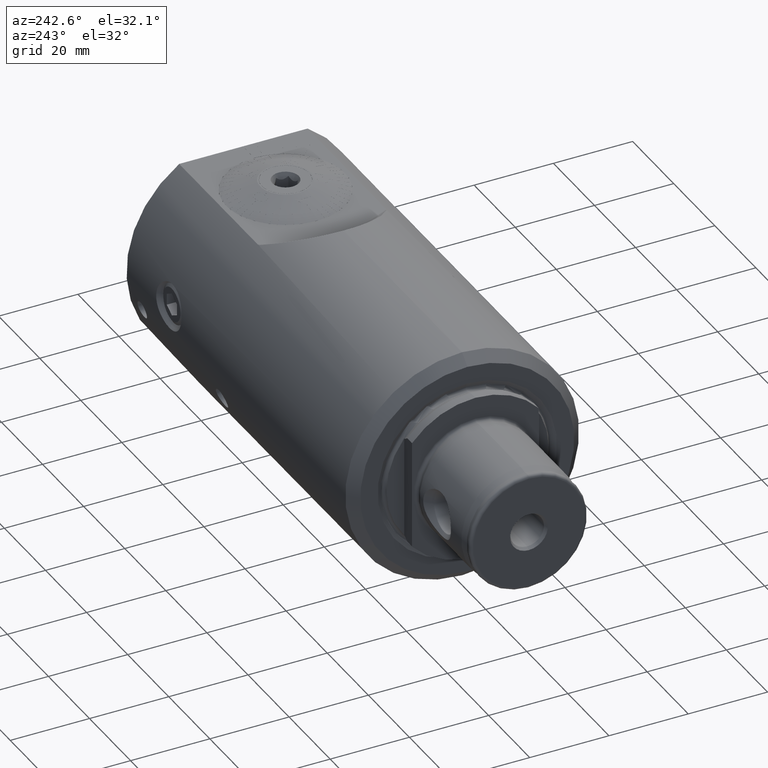
[diagram: clean part render]
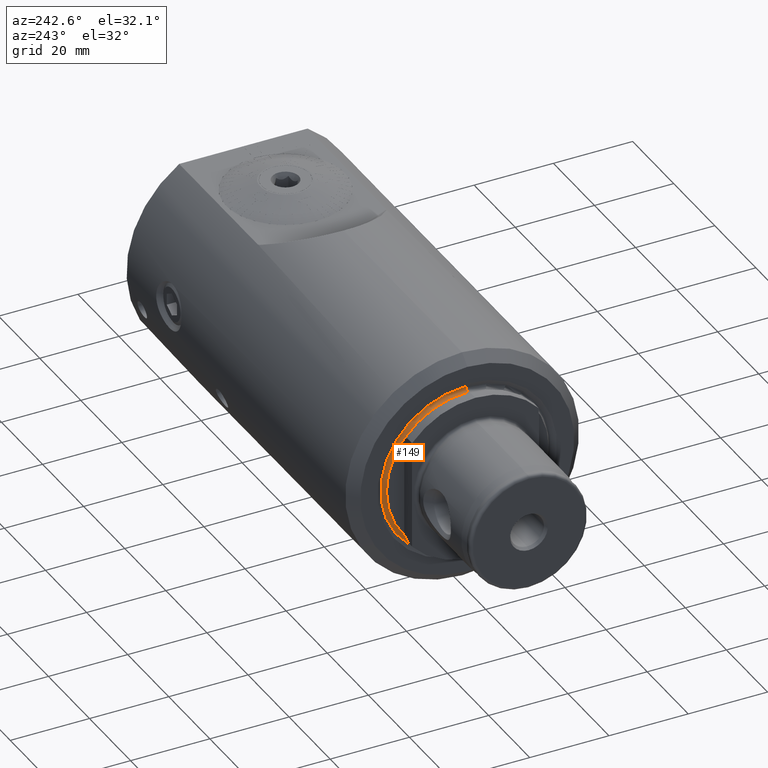
[diagram: same view with one face highlighted and labeled with its STEP entity id]
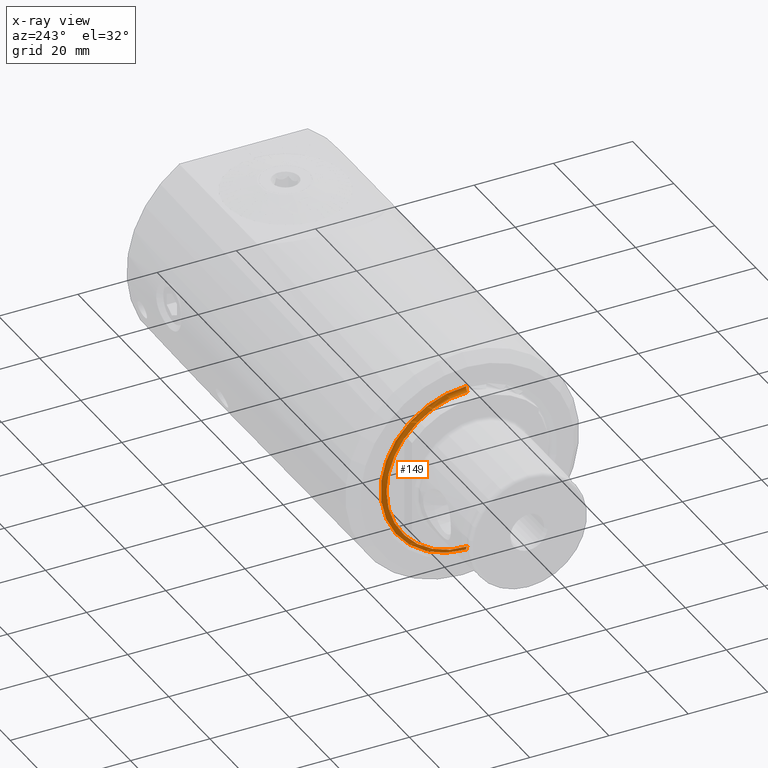
[diagram: x-ray of the same camera — body ghosted, the highlighted face saturated]
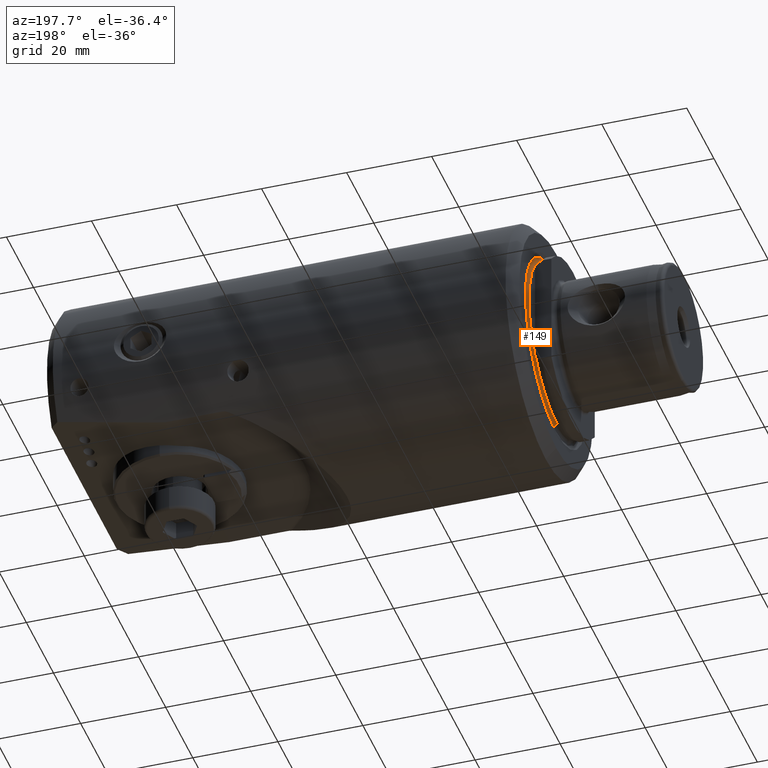
[diagram: same view with one face highlighted and labeled with its STEP entity id]
A machine part, auxiliary view. The second image highlights one B-rep face of the part: STEP entity #149.
The next image is the same camera in x-ray: the body ghosted, the highlighted face saturated — about 3% of this face is hidden behind the body in this view.
A second angle (auxiliary view) of the same face is appended — the face is thin or edge-on in the first view.
In plain terms, the highlighted toroidal blend (fillet) surface has major radius 21.275 mm and minor (blend) radius 0.8 mm.
Its self-contained STEP definition (entity closure, byte-faithful):
#149 = ADVANCED_FACE ( 'NONE', ( #3322 ), #9831, .F. ) ;
#924 = CARTESIAN_POINT ( 'NONE',  ( -111.2499999999996000, 16.00000000000000000, 12.77597843610850100 ) ) ;
#1096 = AXIS2_PLACEMENT_3D ( 'NONE', #1683, #24501, #14410 ) ;
#1249 = ORIENTED_EDGE ( 'NONE', *, *, #2013, .F. ) ;
#1683 = CARTESIAN_POINT ( 'NONE',  ( -111.1499999999999900, -3.122502256758252800E-014, 0.0000000000000000000 ) ) ;
#1930 = VERTEX_POINT ( 'NONE', #21448 ) ;
#2013 = EDGE_CURVE ( 'NONE', #14453, #11516, #2872, .T. ) ;
#2237 = CARTESIAN_POINT ( 'NONE',  ( -111.1828877369843600, 16.00000000000000000, -12.78021426343100100 ) ) ;
#2394 = CARTESIAN_POINT ( 'NONE',  ( -111.2500000000000100, 16.00000000000000000, -12.77597843611186900 ) ) ;
#2872 = B_SPLINE_CURVE_WITH_KNOTS ( 'NONE', 3,
 ( #10536, #12656, #2237, #4341, #19050, #2394 ),
 .UNSPECIFIED., .F., .F.,
 ( 4, 2, 4 ),
 ( 0.003354170816212918100, 0.003404154261752227900, 0.003454137707291538200 ),
 .UNSPECIFIED. ) ;
#2907 = EDGE_CURVE ( 'NONE', #11516, #22099, #23396, .T. ) ;
#3322 = FACE_OUTER_BOUND ( 'NONE', #13050, .T. ) ;
#3962 = CARTESIAN_POINT ( 'NONE',  ( -111.2499999999999900, -2.871755824632831900E-014, -20.47500000000000100 ) ) ;
#4341 = CARTESIAN_POINT ( 'NONE',  ( -111.2163933298203800, 16.00000000000000000, -12.77682779062045500 ) ) ;
#4398 = CARTESIAN_POINT ( 'NONE',  ( -111.2499999999999900, -3.122502256758252800E-014, 0.0000000000000000000 ) ) ;
#4460 = VERTEX_POINT ( 'NONE', #10044 ) ;
#4489 = B_SPLINE_CURVE_WITH_KNOTS ( 'NONE', 3,
 ( #924, #21650, #19643, #13464, #13375 ),
 .UNSPECIFIED., .F., .F.,
 ( 4, 1, 4 ),
 ( 5.358781147299903300E-005, 0.0001038313963802610800, 0.0001540749812875231100 ),
 .UNSPECIFIED. ) ;
#4846 = EDGE_CURVE ( 'NONE', #15572, #22583, #4489, .T. ) ;
#5108 = AXIS2_PLACEMENT_3D ( 'NONE', #14980, #10411, #24929 ) ;
#5423 = CIRCLE ( 'NONE', #1096, 20.48127460668062500 ) ;
#6726 = CARTESIAN_POINT ( 'NONE',  ( -111.2499999999996000, 16.00000000000000000, 12.77597843610850100 ) ) ;
#6765 = CIRCLE ( 'NONE', #11647, 20.47500000000000100 ) ;
#8002 = ORIENTED_EDGE ( 'NONE', *, *, #10178, .F. ) ;
#8451 = ORIENTED_EDGE ( 'NONE', *, *, #4846, .F. ) ;
#8662 = DIRECTION ( 'NONE',  ( 0.0000000000000000000, 0.0000000000000000000, 1.000000000000000000 ) ) ;
#9095 = CARTESIAN_POINT ( 'NONE',  ( -111.2500000000000100, 16.00000000000000000, -12.77597843611186900 ) ) ;
#9728 = CIRCLE ( 'NONE', #5108, 21.61309460939256200 ) ;
#9831 = TOROIDAL_SURFACE ( 'NONE', #15436, 21.27499999999999900, 0.7999999999999999300 ) ;
#9897 = ORIENTED_EDGE ( 'NONE', *, *, #25735, .T. ) ;
#10044 = CARTESIAN_POINT ( 'NONE',  ( -110.5249537703706700, -2.857818185427637100E-014, -21.61309460939255800 ) ) ;
#10081 = CIRCLE ( 'NONE', #23139, 0.7999999999999986000 ) ;
#10178 = EDGE_CURVE ( 'NONE', #1930, #15572, #6765, .T. ) ;
#10411 = DIRECTION ( 'NONE',  ( -1.000000000000000000, -0.0000000000000000000, -0.0000000000000000000 ) ) ;
#10536 = CARTESIAN_POINT ( 'NONE',  ( -111.1499999999999900, 16.00000000000000000, -12.78603181265632000 ) ) ;
#11360 = DIRECTION ( 'NONE',  ( 0.0000000000000000000, 0.0000000000000000000, 1.000000000000000000 ) ) ;
#11516 = VERTEX_POINT ( 'NONE', #9095 ) ;
#11552 = DIRECTION ( 'NONE',  ( -0.0000000000000000000, 1.000000000000000000, 1.224646799147353200E-016 ) ) ;
#11647 = AXIS2_PLACEMENT_3D ( 'NONE', #17898, #19754, #11360 ) ;
#11794 = AXIS2_PLACEMENT_3D ( 'NONE', #4398, #23110, #8662 ) ;
#12298 = ORIENTED_EDGE ( 'NONE', *, *, #15870, .F. ) ;
#12551 = ORIENTED_EDGE ( 'NONE', *, *, #13481, .T. ) ;
#12656 = CARTESIAN_POINT ( 'NONE',  ( -111.1663447933650000, 16.00000000000000000, -12.78273320730189000 ) ) ;
#12836 = ORIENTED_EDGE ( 'NONE', *, *, #14396, .T. ) ;
#12932 = CARTESIAN_POINT ( 'NONE',  ( -111.2499999999999900, -3.122502256758252800E-014, 0.0000000000000000000 ) ) ;
#13050 = EDGE_LOOP ( 'NONE', ( #8002, #12551, #12836, #12298, #25867, #1249, #9897, #8451 ) ) ;
#13375 = CARTESIAN_POINT ( 'NONE',  ( -111.1499999999999900, 16.00000000000000000, 12.78603181265632000 ) ) ;
#13464 = CARTESIAN_POINT ( 'NONE',  ( -111.1665304463499400, 16.00000000000000400, 12.78269573996195700 ) ) ;
#13481 = EDGE_CURVE ( 'NONE', #1930, #23000, #10081, .T. ) ;
#14396 = EDGE_CURVE ( 'NONE', #23000, #4460, #9728, .T. ) ;
#14410 = DIRECTION ( 'NONE',  ( 0.0000000000000000000, -3.552713678800500900E-015, 1.000000000000000000 ) ) ;
#14453 = VERTEX_POINT ( 'NONE', #23530 ) ;
#14980 = CARTESIAN_POINT ( 'NONE',  ( -110.5249537703706700, -3.122502256758252800E-014, 0.0000000000000000000 ) ) ;
#15436 = AXIS2_PLACEMENT_3D ( 'NONE', #12932, #23325, #17117 ) ;
#15572 = VERTEX_POINT ( 'NONE', #6726 ) ;
#15870 = EDGE_CURVE ( 'NONE', #22099, #4460, #22963, .T. ) ;
#16330 = DIRECTION ( 'NONE',  ( 0.0000000000000000000, 0.0000000000000000000, -1.000000000000000000 ) ) ;
#16656 = CARTESIAN_POINT ( 'NONE',  ( -110.5249537703706700, -3.122502256758252800E-014, 21.61309460939255800 ) ) ;
#17035 = CARTESIAN_POINT ( 'NONE',  ( -111.1499999999999900, 16.00000000000000000, 12.78603181265632000 ) ) ;
#17117 = DIRECTION ( 'NONE',  ( 0.0000000000000000000, 0.0000000000000000000, 1.000000000000000000 ) ) ;
#17898 = CARTESIAN_POINT ( 'NONE',  ( -111.2499999999999900, -3.122502256758252800E-014, 0.0000000000000000000 ) ) ;
#19050 = CARTESIAN_POINT ( 'NONE',  ( -111.2332827060808000, 16.00000000000000000, -12.77597843611202000 ) ) ;
#19643 = CARTESIAN_POINT ( 'NONE',  ( -111.1997267125726000, 16.00000000000000000, 12.77767378219016900 ) ) ;
#19754 = DIRECTION ( 'NONE',  ( -1.000000000000000000, -0.0000000000000000000, -0.0000000000000000000 ) ) ;
#21448 = CARTESIAN_POINT ( 'NONE',  ( -111.2499999999999900, -3.122502256758252800E-014, 20.47500000000000100 ) ) ;
#21650 = CARTESIAN_POINT ( 'NONE',  ( -111.2331958781549200, 15.99999999999999600, 12.77597843611212600 ) ) ;
#22099 = VERTEX_POINT ( 'NONE', #3962 ) ;
#22583 = VERTEX_POINT ( 'NONE', #17035 ) ;
#22792 = DIRECTION ( 'NONE',  ( 0.0000000000000000000, -1.000000000000000000, 0.0000000000000000000 ) ) ;
#22963 = CIRCLE ( 'NONE', #25843, 0.7999999999999986000 ) ;
#23000 = VERTEX_POINT ( 'NONE', #16656 ) ;
#23110 = DIRECTION ( 'NONE',  ( -1.000000000000000000, -0.0000000000000000000, -0.0000000000000000000 ) ) ;
#23139 = AXIS2_PLACEMENT_3D ( 'NONE', #24609, #22792, #16330 ) ;
#23325 = DIRECTION ( 'NONE',  ( -1.000000000000000000, -0.0000000000000000000, -0.0000000000000000000 ) ) ;
#23396 = CIRCLE ( 'NONE', #11794, 20.47500000000000100 ) ;
#23530 = CARTESIAN_POINT ( 'NONE',  ( -111.1499999999999900, 16.00000000000000000, -12.78603181265632000 ) ) ;
#23952 = CARTESIAN_POINT ( 'NONE',  ( -111.2499999999999900, -2.861958650239653200E-014, -21.27499999999999900 ) ) ;
#24501 = DIRECTION ( 'NONE',  ( 1.000000000000000000, 0.0000000000000000000, 0.0000000000000000000 ) ) ;
#24609 = CARTESIAN_POINT ( 'NONE',  ( -111.2499999999999900, -3.122502256758252800E-014, 21.27499999999999900 ) ) ;
#24929 = DIRECTION ( 'NONE',  ( 0.0000000000000000000, 0.0000000000000000000, 1.000000000000000000 ) ) ;
#25735 = EDGE_CURVE ( 'NONE', #14453, #22583, #5423, .T. ) ;
#25843 = AXIS2_PLACEMENT_3D ( 'NONE', #23952, #11552, #26140 ) ;
#25867 = ORIENTED_EDGE ( 'NONE', *, *, #2907, .F. ) ;
#26140 = DIRECTION ( 'NONE',  ( 0.0000000000000000000, -1.224646799147368000E-016, 1.000000000000000000 ) ) ;